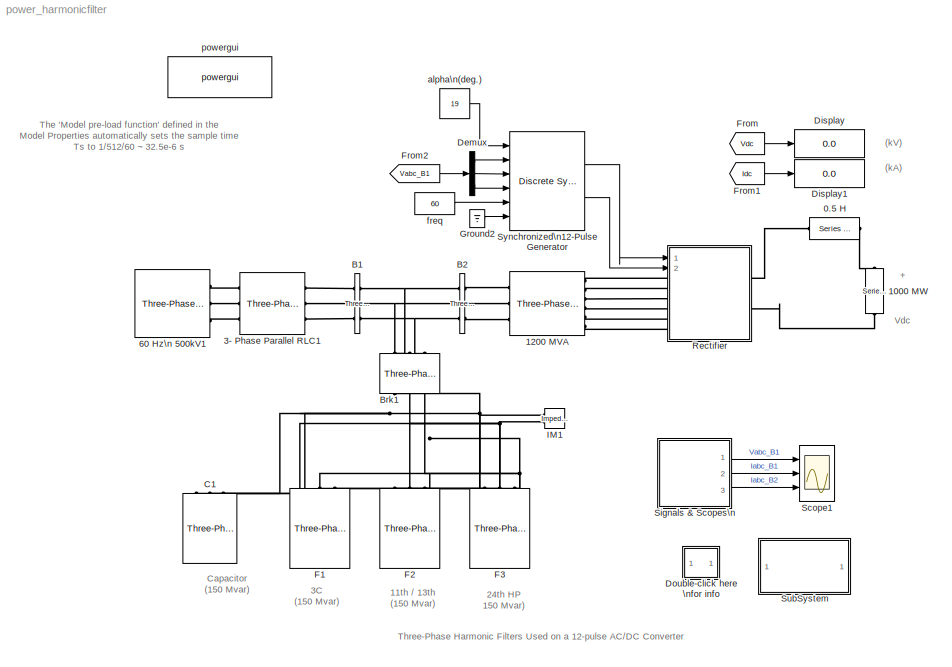
MODEL power_harmonicfilter
KIND model
CONFIG PreLoadFcn = Ts=1/512/60;
BLOCK [Reference]  60 Hz\n 500kV1  REF=powerlib/Electrical\nSources/Three-Phase Source
  BaseVoltage = 0
  Frequency = 60
  Inductance = 98.03e-3
  InternalConnection = Yg
  PhaseAngle = 0
  Ports = [0, 0, 0, 0, 0, 0, 3]
  Resistance = 0
  ShortCircuitLevel = 0
  ShowPortLabels = on
  SourceBlock = powerlib/Electrical\nSources/Three-Phase Source
  SourceType = Three-Phase Source
  SpecifyImpedance = off
  Voltage = 500e3
  XRratio = 0
BLOCK [Reference] 0.5 H   REF=powerlib/Elements/Series RLC Branch
  AttributesFormatString = \\n
  Capacitance = inf
  Inductance = 0.5
  LConnTagsString = __new0
  LeftPortType = p1
  Measurements = None
  PhysicalDomain = powersysdomain
  Ports = [0, 0, 0, 0, 0, 1, 1]
  RConnTagsString = __new0
  Resistance = 1
  RightPortType = p1
  SourceBlock = powerlib/Elements/Series RLC Branch
  SourceType = Series RLC Branch
  SubClassName = unknown
BLOCK [Reference] 1000 MW  REF=powerlib/Elements/Series RLC Branch
  AttributesFormatString = \\n
  Capacitance = inf
  Inductance = 0
  LConnTagsString = __new0
  LeftPortType = p1
  Measurements = Branch voltage and current
  PhysicalDomain = powersysdomain
  Ports = [0, 0, 0, 0, 0, 1, 1]
  RConnTagsString = __new0
  Resistance = 500e3^2/1000e6
  RightPortType = p1
  SourceBlock = powerlib/Elements/Series RLC Branch
  SourceType = Series RLC Branch
  SubClassName = unknown
BLOCK [Reference] 1200 MVA  REF=powerlib/Elements/Three-Phase\nTransformer\n(Three Windings)
  AttributesFormatString = \\n
  DataFile = 'hysteresis'
  Hysteresis = off
  InitialFluxes = [0.8 -0.8 0.7]
  Lm = 500
  Measurements = All measurements (V I Fluxes)
  NominalPower = [ 1200e6 , 60 ]
  Ports = [0, 0, 0, 0, 0, 3, 6]
  Rm = 500
  Saturation = [0 0; 1 1.2; 2 1.1]
  SetInitialFlux = off
  SetSaturation = off
  ShowPortLabels = on
  SourceBlock = powerlib/Elements/Three-Phase\nTransformer\n(Three Windings)
  SourceType = Three-Phase Transformer (Three Windings)
  TransfoNumber = 0
  Winding1 = [ 500e3*0.9 0.0025  0 ]
  Winding1Connection = Yg
  Winding2 = [ 200e3 0.0025 0.24]
  Winding2Connection = Y
  Winding3 = [ 200e3 0.0025 0.24 ]
  Winding3Connection = Delta (D1)
BLOCK [Reference] 3- Phase Parallel RLC1  REF=powerlib/Elements/Three-Phase\nParallel RLC Branch
  AttributesFormatString = \\n
  Capacitance = 0
  Inductance = 48.86e-3
  LConnTagsString = A|B|C
  LeftPortType = p1
  Measurements = None
  PhysicalDomain = powersysdomain
  Ports = [0, 0, 0, 0, 0, 3, 3]
  RConnTagsString = A|B|C
  Resistance = 26.07
  RightPortType = p1
  SourceBlock = powerlib/Elements/Three-Phase\nParallel RLC Branch
  SourceType = Three-Phase Parallel RLC Branch
  SubClassName = unknown
BLOCK [Reference] B1  REF=powerlib/Measurements/Three-Phase\nV-I Measurement
  CurrentMeasurement = yes
  Ipu = off
  LabelI = Iabc_B1
  LabelV = Vabc_B1
  OutputType = Magnitude
  PSBequivalent = 0
  Pbase = 100e6
  PhasorSimulation = off
  Ports = [0, 0, 0, 0, 0, 3, 3]
  SetLabelI = on
  SetLabelV = on
  ShowPortLabels = on
  SourceBlock = powerlib/Measurements/Three-Phase\nV-I Measurement
  SourceType = Three-Phase VI Measurement
  Vbase = 500e3
  VoltageMeasurement = phase-to-ground
  Vpu = off
BLOCK [Reference] B2   REF=powerlib/Measurements/Three-Phase\nV-I Measurement
  CurrentMeasurement = yes
  Ipu = off
  LabelI = Iabc_B2
  LabelV = Vabc_B2
  OutputType = Magnitude
  PSBequivalent = 0
  Pbase = 100e6
  PhasorSimulation = off
  Ports = [0, 0, 0, 0, 0, 3, 3]
  SetLabelI = on
  SetLabelV = on
  ShowPortLabels = on
  SourceBlock = powerlib/Measurements/Three-Phase\nV-I Measurement
  SourceType = Three-Phase VI Measurement
  Vbase = 500e3
  VoltageMeasurement = phase-to-ground
  Vpu = off
BLOCK [Reference] Brk1  REF=powerlib/Elements/Three-Phase Breaker
  AttributesFormatString = \\n
  BreakerResistance = 1e-4
  External = off
  InitialState = closed
  Measurements = None
  Ports = [0, 0, 0, 0, 0, 3, 3]
  ShowPortLabels = on
  SnubberCapacitance = inf
  SnubberResistance = 1e6
  SourceBlock = powerlib/Elements/Three-Phase Breaker
  SourceType = Three-Phase Breaker
  SwitchA = off
  SwitchB = off
  SwitchC = off
  SwitchTimes = [4/60  10/60]
BLOCK [Reference] C1  REF=powerlib/Elements/Three-Phase\nSeries RLC Load
  ActivePower = 0
  AttributesFormatString = \\n
  CapacitivePower = 150e6
  Configuration = Y (grounded)
  InductivePower = 0
  LConnTagsString = A|B|C
  LeftPortType = p1
  Measurements = None
  NominalFrequency = 60
  NominalVoltage = 500e3
  PhysicalDomain = powersysdomain
  Ports = [0, 0, 0, 0, 0, 3]
  RightPortType = p1
  SourceBlock = powerlib/Elements/Three-Phase\nSeries RLC Load
  SourceType = Three-Phase Series RLC Load
  SubClassName = unknown
BLOCK [Demux] Demux
  Outputs = 3
  Ports = [1, 3]
BLOCK [Display] Display
  Decimation = 1
  Format = bank
  Ports = [1]
  SampleTime = Ts*20
BLOCK [Display] Display1
  Decimation = 1
  Format = bank
  Ports = [1]
  SampleTime = Ts*20
BLOCK [SubSystem] Double-click here \nfor info
  MaskDisplay = disp('?')
  MaskIconFrame = on
  MaskIconOpaque = on
  MaskIconRotate = none
  MaskIconUnits = autoscale
  MinAlgLoopOccurrences = off
  Ports = []
  RTWSystemCode = Auto
  TreatAsAtomicUnit = off
BLOCK [Reference] F1   REF=powerlib/Elements/Three-Phase\nHarmonic Filter
  AttributesFormatString = \\n
  FilterConnection = Y (grounded)
  FilterType = C-type High-pass
  Fr = [3*60]
  Frd = [11*60 13*60]
  LConnTagsString = A|B|C
  LeftPortType = p1
  Measurements = None
  ParNom = [500e3 60]
  PhysicalDomain = powersysdomain
  Ports = [0, 0, 0, 0, 0, 3]
  Q = 2
  Qc = 150e6
  RightPortType = p1
  SourceBlock = powerlib/Elements/Three-Phase\nHarmonic Filter
  SourceType = Three-Phase Harmonic Filter
  SubClassName = unknown
BLOCK [Reference] F2  REF=powerlib/Elements/Three-Phase\nHarmonic Filter
  AttributesFormatString = \\n
  FilterConnection = Y (grounded)
  FilterType = Double-tuned
  Fr = [3*60]
  Frd = [11*60 13*60]
  LConnTagsString = A|B|C
  LeftPortType = p1
  Measurements = None
  ParNom = [500e3 60]
  PhysicalDomain = powersysdomain
  Ports = [0, 0, 0, 0, 0, 3]
  Q = 20
  Qc = 150e6
  RightPortType = p1
  SourceBlock = powerlib/Elements/Three-Phase\nHarmonic Filter
  SourceType = Three-Phase Harmonic Filter
  SubClassName = unknown
BLOCK [Reference] F3  REF=powerlib/Elements/Three-Phase\nHarmonic Filter
  AttributesFormatString = \\n
  FilterConnection = Y (grounded)
  FilterType = High-pass
  Fr = [24*60]
  Frd = [11*60 13*60]
  LConnTagsString = A|B|C
  LeftPortType = p1
  Measurements = None
  ParNom = [500e3 60]
  PhysicalDomain = powersysdomain
  Ports = [0, 0, 0, 0, 0, 3]
  Q = 7
  Qc = 150e6
  RightPortType = p1
  SourceBlock = powerlib/Elements/Three-Phase\nHarmonic Filter
  SourceType = Three-Phase Harmonic Filter
  SubClassName = unknown
BLOCK [From] From
  CloseFcn = tagdialog Close
  DialogController = Simulink.DDGSource
  GotoTag = Vdc
BLOCK [From] From1
  CloseFcn = tagdialog Close
  DialogController = Simulink.DDGSource
  GotoTag = Idc
BLOCK [From] From2
  CloseFcn = tagdialog Close
  DialogController = Simulink.DDGSource
  GotoTag = Vabc_B1
BLOCK [Ground] Ground2
BLOCK [Reference] IM1  REF=powerlib/Measurements/Impedance Measurement
  AttributesFormatString = \\n
  Factor = 0.5
  LConnTagsString = +|-
  LeftPortType = p1
  PhysicalDomain = powersysdomain
  Ports = [0, 0, 0, 0, 0, 2, 1]
  RConnTagsString = __newr0
  RightPortType = p1
  SourceBlock = powerlib/Measurements/Impedance Measurement
  SourceType = Impedance Measurement
  SubClassName = unknown
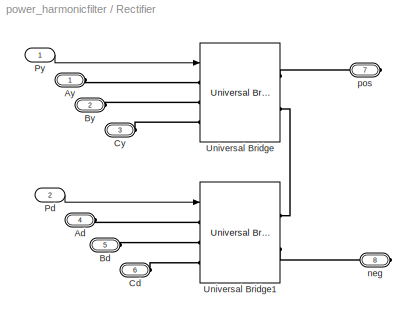
BLOCK [SubSystem] Rectifier
  MaskDisplay = plot(0,0,100,100,[30 70 50 30 ], [40 40 60 40], [50 50], [25 40], [50 50], [ 60 75], [30 70], [60 60], [50 40 30], [60 70 70]);
  MaskIconFrame = on
  MaskIconOpaque = off
  MaskIconRotate = none
  MaskIconUnits = autoscale
  MinAlgLoopOccurrences = off
  Ports = [2, 0, 0, 0, 0, 6, 2]
  RTWSystemCode = Auto
  TreatAsAtomicUnit = off
BLOCK [PMIOPort] Rectifier/Ad
  Port = 4
  Side = Left
BLOCK [PMIOPort] Rectifier/Ay
  Port = 1
  Side = Left
BLOCK [PMIOPort] Rectifier/Bd
  Port = 5
  Side = Left
BLOCK [PMIOPort] Rectifier/By
  Port = 2
  Side = Left
BLOCK [PMIOPort] Rectifier/Cd
  Port = 6
  Side = Left
BLOCK [PMIOPort] Rectifier/Cy
  Port = 3
  Side = Left
BLOCK [Inport] Rectifier/Pd
  IconDisplay = Port number
  LatchInput = off
  Port = 2
BLOCK [Inport] Rectifier/Py
  IconDisplay = Port number
  LatchInput = off
  Port = 1
BLOCK [Reference] Rectifier/Universal Bridge  REF=powerlib/Power\nElectronics/Universal Bridge
  Arms = 3
  AttributesFormatString = \\n
  Device = Thyristors
  ForwardVoltage = 0
  ForwardVoltages = [  0.8  0.8  ]
  GTOparameters = [ 10e-6 , 20e-6 ]
  IGBTparameters = [ 1e-6 , 2e-6 ]
  Lon = 0
  Measurements = None
  Ports = [1, 0, 0, 0, 0, 3, 2]
  Ron = 1e-3
  ShowPortLabels = on
  SnubberCapacitance = 0.1e-6
  SnubberResistance = 2000
  SourceBlock = powerlib/Power\nElectronics/Universal Bridge
  SourceType = Universal Bridge
BLOCK [Reference] Rectifier/Universal Bridge1  REF=powerlib/Power\nElectronics/Universal Bridge
  Arms = 3
  AttributesFormatString = \\n
  Device = Thyristors
  ForwardVoltage = 0
  ForwardVoltages = [  0.8  0.8  ]
  GTOparameters = [ 10e-6 , 20e-6 ]
  IGBTparameters = [ 1e-6 , 2e-6 ]
  Lon = 0
  Measurements = None
  Ports = [1, 0, 0, 0, 0, 3, 2]
  Ron = 1e-3
  ShowPortLabels = on
  SnubberCapacitance = 0.1e-6
  SnubberResistance = 2000
  SourceBlock = powerlib/Power\nElectronics/Universal Bridge
  SourceType = Universal Bridge
BLOCK [PMIOPort] Rectifier/neg
  Port = 8
  Side = Right
BLOCK [PMIOPort] Rectifier/pos
  Port = 7
  Side = Right
BLOCK [Scope] Scope1
  DataFormat = StructureWithTime
  LimitDataPoints = off
  NumInputPorts = 3
  Ports = [3]
  SaveName = Scope1
  SaveToWorkspace = on
  YMax = 600000~2500~2500
  YMin = -600000~-2500~-2500
  ZoomMode = xonly
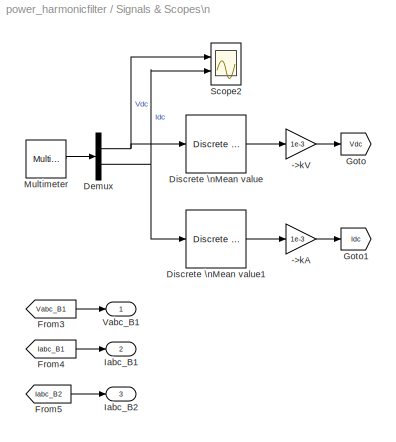
BLOCK [SubSystem] Signals & Scopes\n
  MinAlgLoopOccurrences = off
  Ports = [0, 3]
  RTWSystemCode = Auto
  TreatAsAtomicUnit = off
BLOCK [Gain] Signals & Scopes\n/->kA
  Gain = 1e-3
BLOCK [Gain] Signals & Scopes\n/->kV
  Gain = 1e-3
BLOCK [Demux] Signals & Scopes\n/Demux
  Outputs = [1 1]
  Ports = [1, 2]
BLOCK [Reference] Signals & Scopes\n/Discrete \nMean value  REF=powerlib_extras/Discrete\nMeasurements/Discrete \nMean value
  Freq = 60
  Ports = [1, 1]
  ShowPortLabels = on
  SourceBlock = powerlib_extras/Discrete\nMeasurements/Discrete \nMean value
  SourceType = Discrete Mean value
  Ts = Ts
  Vinit = 0
BLOCK [Reference] Signals & Scopes\n/Discrete \nMean value1  REF=powerlib_extras/Discrete\nMeasurements/Discrete \nMean value
  Freq = 60
  Ports = [1, 1]
  ShowPortLabels = on
  SourceBlock = powerlib_extras/Discrete\nMeasurements/Discrete \nMean value
  SourceType = Discrete Mean value
  Ts = Ts
  Vinit = 0
BLOCK [From] Signals & Scopes\n/From3
  CloseFcn = tagdialog Close
  DialogController = Simulink.DDGSource
  GotoTag = Vabc_B1
BLOCK [From] Signals & Scopes\n/From4
  CloseFcn = tagdialog Close
  DialogController = Simulink.DDGSource
  GotoTag = Iabc_B1
BLOCK [From] Signals & Scopes\n/From5
  CloseFcn = tagdialog Close
  DialogController = Simulink.DDGSource
  GotoTag = Iabc_B2
BLOCK [Goto] Signals & Scopes\n/Goto
  DialogController = Simulink.DDGSource
  GotoTag = Vdc
  TagVisibility = global
BLOCK [Goto] Signals & Scopes\n/Goto1
  DialogController = Simulink.DDGSource
  GotoTag = Idc
  TagVisibility = global
BLOCK [Outport] Signals & Scopes\n/Iabc_B1
  BusOutputAsStruct = off
  IconDisplay = Port number
  Port = 2
BLOCK [Outport] Signals & Scopes\n/Iabc_B2
  BusOutputAsStruct = off
  IconDisplay = Port number
  Port = 3
BLOCK [Reference] Signals & Scopes\n/Multimeter  REF=powerlib/Measurements/Multimeter
  AxesSetting = [0,0.1,-100,100]
  Display = 0
  Gain = [1 1]
  L = 23
  OutputType = Magnitude
  PSBOutputType = 1
  PSBequivalent = 0
  PhasorSimulation = off
  Ports = [0, 1]
  SavedBlockNames = -11
  ShowPortLabels = on
  SourceBlock = powerlib/Measurements/Multimeter
  SourceType = MultimeterPSB
  sel = [1 11]
  yselected = {'Ub: 1000 MW','Ib: 1000 MW'};
BLOCK [Scope] Signals & Scopes\n/Scope2
  DataFormat = StructureWithTime
  LimitDataPoints = off
  NumInputPorts = 2
  Ports = [2]
  YMax = 525000~2100
  YMin = -25000~-100
  ZoomMode = yonly
BLOCK [Outport] Signals & Scopes\n/Vabc_B1
  BusOutputAsStruct = off
  IconDisplay = Port number
BLOCK [SubSystem] SubSystem
  MaskDisplay = disp('Show\\nfilters impedance\\nvs\\nfrequency')
  MaskIconFrame = on
  MaskIconOpaque = on
  MaskIconRotate = none
  MaskIconUnits = autoscale
  MinAlgLoopOccurrences = off
  OpenFcn = openfig('filters_impedance.fig');
  Ports = []
  RTWSystemCode = Auto
  TreatAsAtomicUnit = off
BLOCK [Reference] Synchronized\n12-Pulse Generator  REF=powerlib_extras/Discrete \nControl Blocks/Discrete Synchronized\n12-Pulse Generator
  Double_Pulse = on
  Ports = [6, 2]
  ShowPortLabels = on
  SourceBlock = powerlib_extras/Discrete \nControl Blocks/Discrete Synchronized\n12-Pulse Generator
  SourceType = Discrete synchronized 12-pulse generator
  Ts = Ts
  pwidth = 40
BLOCK [Constant] alpha\n(deg.)
  Value = 19
BLOCK [Constant] freq
  Value = 60
BLOCK [Reference] powergui  REF=powerlib/powergui
  DisplayStyle = 1
  Frange = [50:2:3000]
  FreqAxis = off
  MaxFrequency = 4000
  Ports = []
  Priority = 2
  RmsSteady = 1
  ShowPortLabels = on
  SourceBlock = powerlib/powergui
  SourceType = PSB option menu block
  StartTime = 0.06
  Ts = Ts
  Xlog = off
  Ylog = off
  ZoomFFT = on
  cycles = 2
  display = off
  echomessages = on
  frequency = 60
  frequencyindice = 1
  frequencyindicesteady = 1
  fundamental = 60
  methode = off
  save = on
  structure = Scope1
  variable = ZData5
ANNOTATION (root): (kA)
ANNOTATION (root): (kV)
ANNOTATION (root): +\n\n\nVdc\n\n\n-
ANNOTATION (root): 11th / 13th\n(150 Mvar)
ANNOTATION (root): 24th HP\n150 Mvar)
ANNOTATION (root): 3C\n(150 Mvar)
ANNOTATION (root): Capacitor\n(150 Mvar)
ANNOTATION (root): The 'Model pre-load function' defined in the\nModel Properties automatically sets the sample time\nTs to 1/512/60 ~ 32.5e-6 s
ANNOTATION (root): Three-Phase Harmonic Filters Used on a 12-pulse AC/DC Converter
ANNOTATION Double-click here \nfor info: CIRCUIT DESCRIPTION
ANNOTATION Double-click here \nfor info: DEMONSTRATION
ANNOTATION Double-click here \nfor info: Frequency response
ANNOTATION Double-click here \nfor info: In HVDC installations, AC harmonic shunt filters are used to:\n1) reduce harmonic voltages and currents in the power system,\n2) supply the reactive power consumed by the converter.\nTo illustrate these concepts, a 1000-MW (500 kV, 2kA) HVDC rectifier is simulated.
ANNOTATION Double-click here \nfor info: Pierre Giroux (Hydro-Quebec)
ANNOTATION Double-click here \nfor info: Run a first simulation with an alpha firing angle of 19 degrees. You should get a DC voltage level of 500 kV.\nNow, look inside Scope1. Compare the currents flowing into Bus B1 (Iabc_B1, axis 2) with those flowing into Bus B2 (Iabc_B2, axis 3).\nYou can see that the harmonic filters almost eliminate the harmonics generated by the converter. If you use the FFT tool of the powergui,\nyou will find t...<+231ch>
ANNOTATION Double-click here \nfor info: The HVDC rectifier is built up from two 6-pulse thyristor bridges connected in series. The converter is connected to the system\nwith a 1200-MVA Three-Phase transformer (three windings). A 1000-MW resistive load is connected to the DC side through \na 0.5 H smoothing reactor.\nThe filters set is made of the following four components of the powerlib/Elements library:\n- one capacitor banks (C1) of ...<+633ch>
ANNOTATION Double-click here \nfor info: Three-Phase Harmonic Filters
ANNOTATION Double-click here \nfor info: Time-domain simulation
ANNOTATION Double-click here \nfor info: You will now plot the impedance vs frequency of the harmonic filters:\n1) Disconnect the filters from the AC bus. To do so, double-click on the breaker Brk1, select 'open' for initial status of breakers \nand click on the OK button.\n2) Open the powergui and select \"Impedance vs Frequency Measurement\".\n3) Click on the Display/Save button. SimPowerSystems will compute and display the filters fre...<+479ch>
LINE Demux:1 -> Synchronized\n12-Pulse Generator:2
LINE Demux:2 -> Synchronized\n12-Pulse Generator:3
LINE Demux:3 -> Synchronized\n12-Pulse Generator:4
LINE From1:1 -> Display1:1
LINE From2:1 -> Demux:1
LINE From:1 -> Display:1
LINE Ground2:1 -> Synchronized\n12-Pulse Generator:6
LINE Rectifier/Pd:1 -> Rectifier/Universal Bridge1:1
LINE Rectifier/Py:1 -> Rectifier/Universal Bridge:1
LINE Signals & Scopes\n/->kA:1 -> Signals & Scopes\n/Goto1:1
LINE Signals & Scopes\n/->kV:1 -> Signals & Scopes\n/Goto:1
NET Signals & Scopes\n/Demux:1 -> Signals & Scopes\n/Discrete \nMean value:1, Signals & Scopes\n/Scope2:1
NET Signals & Scopes\n/Demux:2 -> Signals & Scopes\n/Discrete \nMean value1:1, Signals & Scopes\n/Scope2:2
LINE Signals & Scopes\n/Discrete \nMean value1:1 -> Signals & Scopes\n/->kA:1
LINE Signals & Scopes\n/Discrete \nMean value:1 -> Signals & Scopes\n/->kV:1
LINE Signals & Scopes\n/From3:1 -> Signals & Scopes\n/Vabc_B1:1
LINE Signals & Scopes\n/From4:1 -> Signals & Scopes\n/Iabc_B1:1
LINE Signals & Scopes\n/From5:1 -> Signals & Scopes\n/Iabc_B2:1
LINE Signals & Scopes\n/Multimeter:1 -> Signals & Scopes\n/Demux:1
LINE Signals & Scopes\n:1 -> Scope1:1
LINE Signals & Scopes\n:2 -> Scope1:2
LINE Signals & Scopes\n:3 -> Scope1:3
LINE Synchronized\n12-Pulse Generator:1 -> Rectifier:1
LINE Synchronized\n12-Pulse Generator:2 -> Rectifier:2
LINE alpha\n(deg.):1 -> Synchronized\n12-Pulse Generator:1
LINE freq:1 -> Synchronized\n12-Pulse Generator:5
PLINE  60 Hz\n 500kV1:RConn1 -- 3- Phase Parallel RLC1:LConn1
PLINE  60 Hz\n 500kV1:RConn2 -- 3- Phase Parallel RLC1:LConn2
PLINE  60 Hz\n 500kV1:RConn3 -- 3- Phase Parallel RLC1:LConn3
PLINE 0.5 H :LConn1 -- Rectifier:RConn1
PLINE 0.5 H :RConn1 -- 1000 MW:LConn1
PLINE 1000 MW:RConn1 -- Rectifier:RConn2
PLINE 1200 MVA:LConn1 -- B2 :RConn1
PLINE 1200 MVA:LConn2 -- B2 :RConn2
PLINE 1200 MVA:LConn3 -- B2 :RConn3
PLINE 1200 MVA:RConn1 -- Rectifier:LConn1
PLINE 1200 MVA:RConn2 -- Rectifier:LConn2
PLINE 1200 MVA:RConn3 -- Rectifier:LConn3
PLINE 1200 MVA:RConn4 -- Rectifier:LConn4
PLINE 1200 MVA:RConn5 -- Rectifier:LConn5
PLINE 1200 MVA:RConn6 -- Rectifier:LConn6
PLINE 3- Phase Parallel RLC1:RConn1 -- B1:LConn1
PLINE 3- Phase Parallel RLC1:RConn2 -- B1:LConn2
PLINE 3- Phase Parallel RLC1:RConn3 -- B1:LConn3
PNET net1: B1:RConn1 -- B2 :LConn1 -- Brk1:LConn1
PNET net2: B1:RConn2 -- B2 :LConn2 -- Brk1:LConn2
PNET net3: B1:RConn3 -- B2 :LConn3 -- Brk1:LConn3
PNET net4: Brk1:RConn1 -- C1:LConn1 -- F1 :LConn1 -- F2:LConn1 -- F3:LConn1 -- IM1:LConn1
PNET net5: Brk1:RConn2 -- C1:LConn2 -- F1 :LConn2 -- F2:LConn2 -- F3:LConn2 -- IM1:LConn2
PNET net6: Brk1:RConn3 -- C1:LConn3 -- F1 :LConn3 -- F2:LConn3 -- F3:LConn3
PLINE Rectifier/Ad:RConn1 -- Rectifier/Universal Bridge1:LConn1
PLINE Rectifier/Ay:RConn1 -- Rectifier/Universal Bridge:LConn1
PLINE Rectifier/Bd:RConn1 -- Rectifier/Universal Bridge1:LConn2
PLINE Rectifier/By:RConn1 -- Rectifier/Universal Bridge:LConn2
PLINE Rectifier/Cd:RConn1 -- Rectifier/Universal Bridge1:LConn3
PLINE Rectifier/Cy:RConn1 -- Rectifier/Universal Bridge:LConn3
PLINE Rectifier/Universal Bridge1:RConn1 -- Rectifier/Universal Bridge:RConn2
PLINE Rectifier/Universal Bridge1:RConn2 -- Rectifier/neg:RConn1
PLINE Rectifier/Universal Bridge:RConn1 -- Rectifier/pos:RConn1
note: NET lines group one-source signal fan-out (src -> all destinations, sorted); 1:1 wires keep LINE; PNET lines group multi-terminal physical nets as a canonical sorted terminal list (undirected conserving connections); 2-terminal nets keep the pairwise PLINE form
